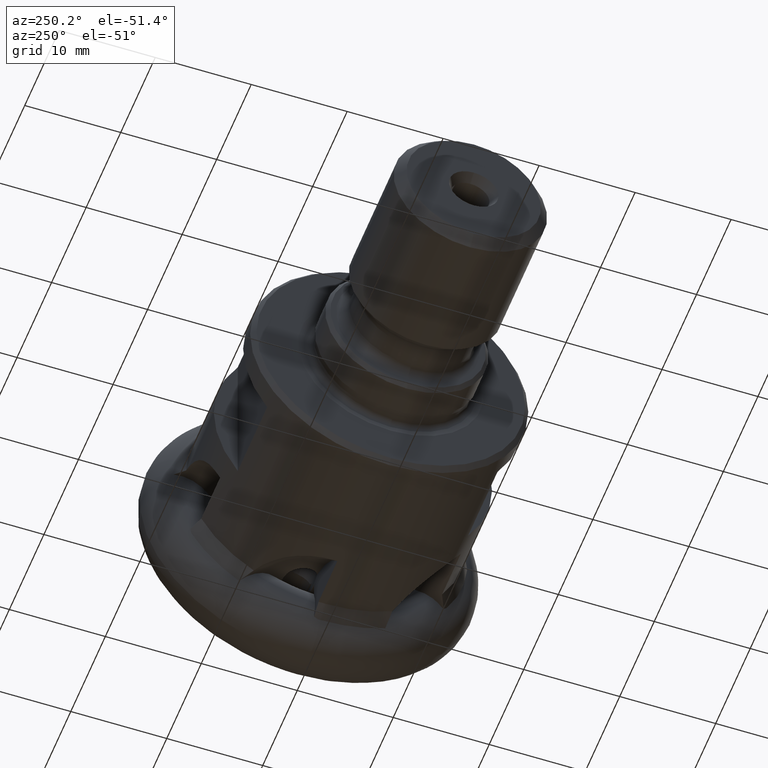
[diagram: clean part render]
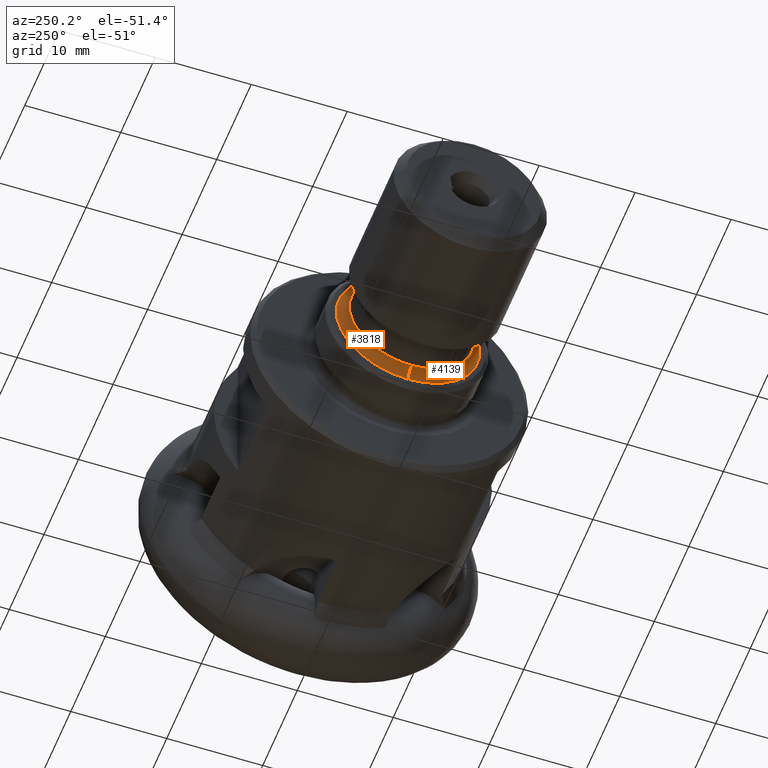
[diagram: same view with one multi-face feature highlighted, each face labeled with its STEP entity id]
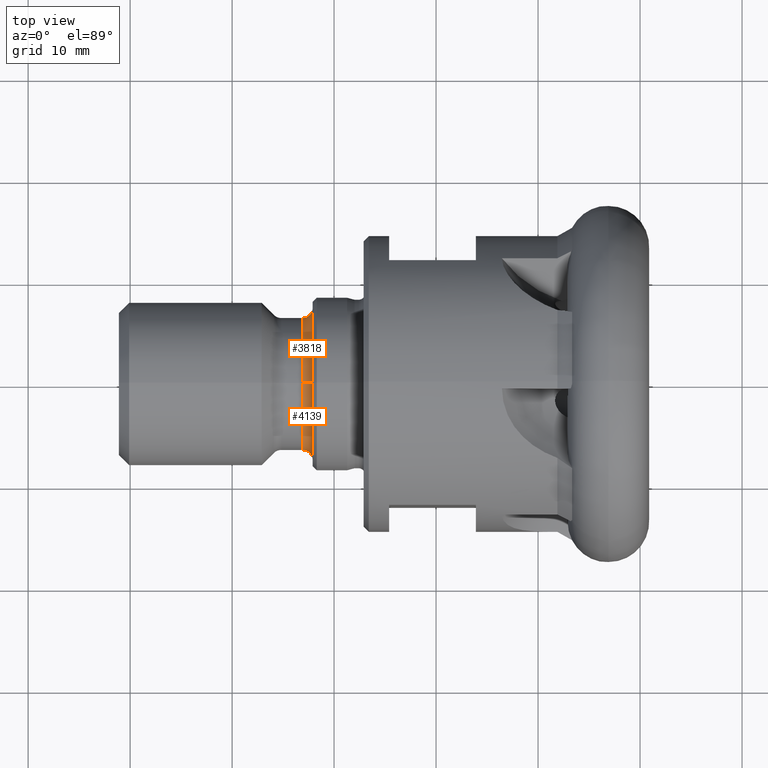
[diagram: same view with one multi-face feature highlighted, each face labeled with its STEP entity id]
A machine part, auxiliary view. The highlighted faces form ONE feature: a constant-radius fillet chain: 2 tangent blend faces with common blend radius 1 mm. The faces share edges in the B-rep.
A second angle (top view) of the same feature is appended — it is thin or edge-on in the first view.
Their STEP definitions:
[1] entity #4139 (Torus):
#309 = ORIENTED_EDGE ( 'NONE', *, *, #3817, .F. ) ;
#336 = CARTESIAN_POINT ( 'NONE',  ( -33.10000000000000100, 0.0000000000000000000, -6.499999999999997300 ) ) ;
#724 = TOROIDAL_SURFACE ( 'NONE', #3866, 7.499999999999996400, 1.000000000000003600 ) ;
#760 = ORIENTED_EDGE ( 'NONE', *, *, #4115, .T. ) ;
#822 = VERTEX_POINT ( 'NONE', #336 ) ;
#898 = VERTEX_POINT ( 'NONE', #6762 ) ;
#1014 = CARTESIAN_POINT ( 'NONE',  ( -32.10000000000000100, 0.0000000000000000000, -7.499999999999996400 ) ) ;
#1289 = CIRCLE ( 'NONE', #3773, 6.499999999999997300 ) ;
#1437 = EDGE_CURVE ( 'NONE', #898, #5035, #2524, .T. ) ;
#1727 = DIRECTION ( 'NONE',  ( -0.0000000000000000000, -1.000000000000000000, -0.0000000000000000000 ) ) ;
#2087 = CIRCLE ( 'NONE', #5745, 1.000000000000004400 ) ;
#2188 = DIRECTION ( 'NONE',  ( 1.000000000000000000, -0.0000000000000000000, -0.0000000000000000000 ) ) ;
#2349 = CARTESIAN_POINT ( 'NONE',  ( -33.10000000000000100, 8.572527594031467300E-016, 6.499999999999997300 ) ) ;
#2524 = CIRCLE ( 'NONE', #5160, 7.499999999999996400 ) ;
#2553 = ORIENTED_EDGE ( 'NONE', *, *, #6562, .T. ) ;
#2977 = DIRECTION ( 'NONE',  ( 0.0000000000000000000, 1.000000000000000000, -1.224646799147353200E-016 ) ) ;
#2999 = CARTESIAN_POINT ( 'NONE',  ( -33.10000000000000100, 9.184850993605144000E-016, 7.499999999999996400 ) ) ;
#3174 = DIRECTION ( 'NONE',  ( 1.000000000000000000, -0.0000000000000000000, -0.0000000000000000000 ) ) ;
#3390 = VERTEX_POINT ( 'NONE', #2349 ) ;
#3773 = AXIS2_PLACEMENT_3D ( 'NONE', #6106, #2188, #7355 ) ;
#3789 = DIRECTION ( 'NONE',  ( 0.0000000000000000000, 0.0000000000000000000, -1.000000000000000000 ) ) ;
#3817 = EDGE_CURVE ( 'NONE', #5035, #822, #5307, .T. ) ;
#3866 = AXIS2_PLACEMENT_3D ( 'NONE', #4344, #5540, #6282 ) ;
#4115 = EDGE_CURVE ( 'NONE', #898, #3390, #2087, .T. ) ;
#4139 = ADVANCED_FACE ( 'NONE', ( #6014 ), #724, .F. ) ;
#4344 = CARTESIAN_POINT ( 'NONE',  ( -33.10000000000000100, 0.0000000000000000000, 0.0000000000000000000 ) ) ;
#5035 = VERTEX_POINT ( 'NONE', #1014 ) ;
#5126 = CARTESIAN_POINT ( 'NONE',  ( -32.10000000000000100, 0.0000000000000000000, 0.0000000000000000000 ) ) ;
#5160 = AXIS2_PLACEMENT_3D ( 'NONE', #5126, #3174, #3789 ) ;
#5307 = CIRCLE ( 'NONE', #7776, 1.000000000000004400 ) ;
#5540 = DIRECTION ( 'NONE',  ( 1.000000000000000000, -0.0000000000000000000, -0.0000000000000000000 ) ) ;
#5559 = CARTESIAN_POINT ( 'NONE',  ( -33.10000000000000100, 0.0000000000000000000, -7.499999999999996400 ) ) ;
#5722 = EDGE_LOOP ( 'NONE', ( #8053, #760, #2553, #309 ) ) ;
#5745 = AXIS2_PLACEMENT_3D ( 'NONE', #2999, #2977, #7554 ) ;
#6014 = FACE_OUTER_BOUND ( 'NONE', #5722, .T. ) ;
#6106 = CARTESIAN_POINT ( 'NONE',  ( -33.10000000000000100, 0.0000000000000000000, 0.0000000000000000000 ) ) ;
#6282 = DIRECTION ( 'NONE',  ( 0.0000000000000000000, 0.0000000000000000000, -1.000000000000000000 ) ) ;
#6562 = EDGE_CURVE ( 'NONE', #3390, #822, #1289, .T. ) ;
#6762 = CARTESIAN_POINT ( 'NONE',  ( -32.10000000000000100, 9.184850993605144000E-016, 7.499999999999996400 ) ) ;
#7355 = DIRECTION ( 'NONE',  ( 0.0000000000000000000, 0.0000000000000000000, -1.000000000000000000 ) ) ;
#7431 = DIRECTION ( 'NONE',  ( 0.0000000000000000000, 0.0000000000000000000, -1.000000000000000000 ) ) ;
#7554 = DIRECTION ( 'NONE',  ( 0.0000000000000000000, 1.224646799147352700E-016, 1.000000000000000000 ) ) ;
#7776 = AXIS2_PLACEMENT_3D ( 'NONE', #5559, #1727, #7431 ) ;
#8053 = ORIENTED_EDGE ( 'NONE', *, *, #1437, .F. ) ;
[2] entity #3818 (Torus):
#336 = CARTESIAN_POINT ( 'NONE',  ( -33.10000000000000100, 0.0000000000000000000, -6.499999999999997300 ) ) ;
#822 = VERTEX_POINT ( 'NONE', #336 ) ;
#898 = VERTEX_POINT ( 'NONE', #6762 ) ;
#1014 = CARTESIAN_POINT ( 'NONE',  ( -32.10000000000000100, 0.0000000000000000000, -7.499999999999996400 ) ) ;
#1218 = EDGE_CURVE ( 'NONE', #5035, #898, #2433, .T. ) ;
#1320 = TOROIDAL_SURFACE ( 'NONE', #6540, 7.499999999999996400, 1.000000000000003600 ) ;
#1446 = CARTESIAN_POINT ( 'NONE',  ( -32.10000000000000100, 0.0000000000000000000, 0.0000000000000000000 ) ) ;
#1727 = DIRECTION ( 'NONE',  ( -0.0000000000000000000, -1.000000000000000000, -0.0000000000000000000 ) ) ;
#1776 = DIRECTION ( 'NONE',  ( 1.000000000000000000, -0.0000000000000000000, -0.0000000000000000000 ) ) ;
#2087 = CIRCLE ( 'NONE', #5745, 1.000000000000004400 ) ;
#2349 = CARTESIAN_POINT ( 'NONE',  ( -33.10000000000000100, 8.572527594031467300E-016, 6.499999999999997300 ) ) ;
#2377 = DIRECTION ( 'NONE',  ( 0.0000000000000000000, 0.0000000000000000000, -1.000000000000000000 ) ) ;
#2433 = CIRCLE ( 'NONE', #8116, 7.499999999999996400 ) ;
#2564 = CIRCLE ( 'NONE', #7664, 6.499999999999997300 ) ;
#2672 = ORIENTED_EDGE ( 'NONE', *, *, #4115, .F. ) ;
#2955 = ORIENTED_EDGE ( 'NONE', *, *, #3817, .T. ) ;
#2977 = DIRECTION ( 'NONE',  ( 0.0000000000000000000, 1.000000000000000000, -1.224646799147353200E-016 ) ) ;
#2999 = CARTESIAN_POINT ( 'NONE',  ( -33.10000000000000100, 9.184850993605144000E-016, 7.499999999999996400 ) ) ;
#3186 = ORIENTED_EDGE ( 'NONE', *, *, #7832, .T. ) ;
#3231 = DIRECTION ( 'NONE',  ( 0.0000000000000000000, 0.0000000000000000000, -1.000000000000000000 ) ) ;
#3390 = VERTEX_POINT ( 'NONE', #2349 ) ;
#3805 = FACE_OUTER_BOUND ( 'NONE', #4327, .T. ) ;
#3817 = EDGE_CURVE ( 'NONE', #5035, #822, #5307, .T. ) ;
#3818 = ADVANCED_FACE ( 'NONE', ( #3805 ), #1320, .F. ) ;
#4115 = EDGE_CURVE ( 'NONE', #898, #3390, #2087, .T. ) ;
#4327 = EDGE_LOOP ( 'NONE', ( #2672, #8153, #2955, #3186 ) ) ;
#4482 = DIRECTION ( 'NONE',  ( 1.000000000000000000, -0.0000000000000000000, -0.0000000000000000000 ) ) ;
#4919 = CARTESIAN_POINT ( 'NONE',  ( -33.10000000000000100, 0.0000000000000000000, 0.0000000000000000000 ) ) ;
#5035 = VERTEX_POINT ( 'NONE', #1014 ) ;
#5307 = CIRCLE ( 'NONE', #7776, 1.000000000000004400 ) ;
#5559 = CARTESIAN_POINT ( 'NONE',  ( -33.10000000000000100, 0.0000000000000000000, -7.499999999999996400 ) ) ;
#5745 = AXIS2_PLACEMENT_3D ( 'NONE', #2999, #2977, #7554 ) ;
#5907 = DIRECTION ( 'NONE',  ( 1.000000000000000000, -0.0000000000000000000, -0.0000000000000000000 ) ) ;
#6382 = DIRECTION ( 'NONE',  ( 0.0000000000000000000, 0.0000000000000000000, -1.000000000000000000 ) ) ;
#6540 = AXIS2_PLACEMENT_3D ( 'NONE', #4919, #1776, #2377 ) ;
#6762 = CARTESIAN_POINT ( 'NONE',  ( -32.10000000000000100, 9.184850993605144000E-016, 7.499999999999996400 ) ) ;
#7431 = DIRECTION ( 'NONE',  ( 0.0000000000000000000, 0.0000000000000000000, -1.000000000000000000 ) ) ;
#7554 = DIRECTION ( 'NONE',  ( 0.0000000000000000000, 1.224646799147352700E-016, 1.000000000000000000 ) ) ;
#7664 = AXIS2_PLACEMENT_3D ( 'NONE', #8284, #4482, #6382 ) ;
#7776 = AXIS2_PLACEMENT_3D ( 'NONE', #5559, #1727, #7431 ) ;
#7832 = EDGE_CURVE ( 'NONE', #822, #3390, #2564, .T. ) ;
#8116 = AXIS2_PLACEMENT_3D ( 'NONE', #1446, #5907, #3231 ) ;
#8153 = ORIENTED_EDGE ( 'NONE', *, *, #1218, .F. ) ;
#8284 = CARTESIAN_POINT ( 'NONE',  ( -33.10000000000000100, 0.0000000000000000000, 0.0000000000000000000 ) ) ;